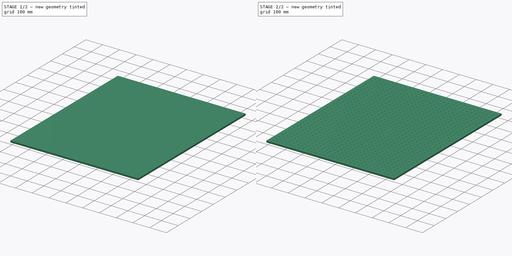
[diagram: build sequence overview — one tinted view per stage of 2, left to right]
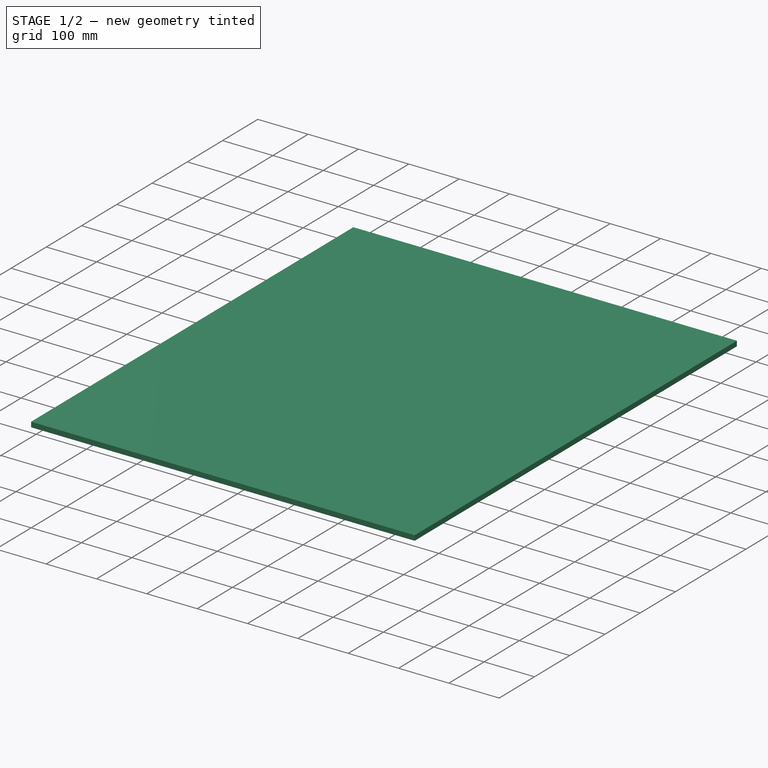
[diagram: stage 1 of 2 — iso view after this stage's code; geometry added in this stage tinted green]
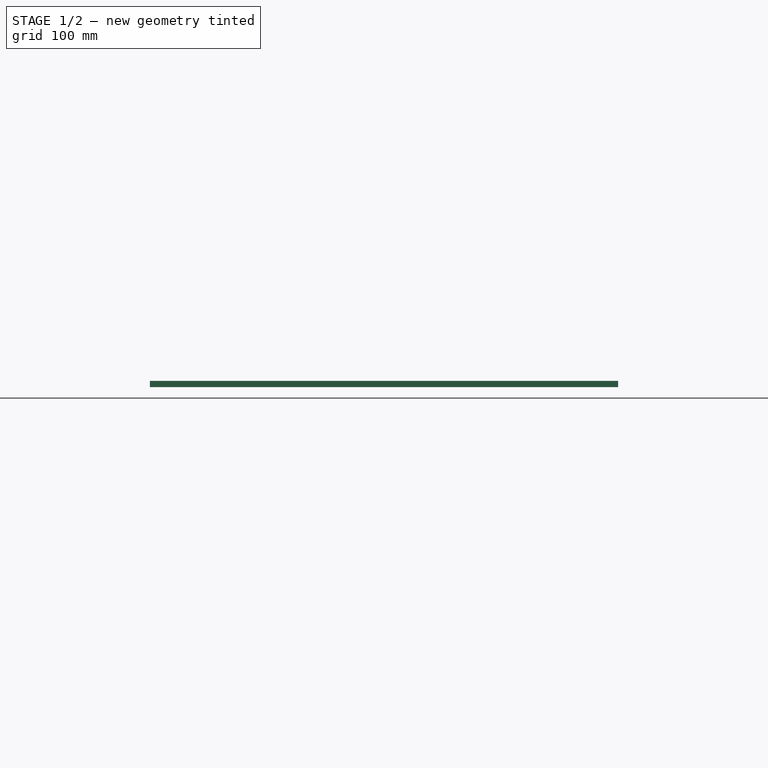
[diagram: stage 1 of 2 — front view after this stage's code; geometry added in this stage tinted green]
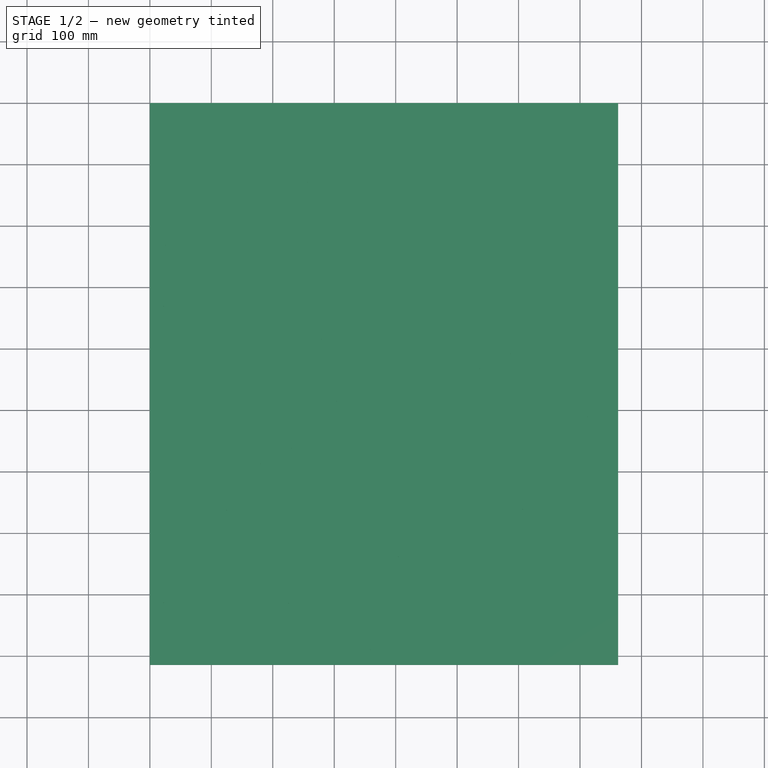
[diagram: stage 1 of 2 — top view after this stage's code; geometry added in this stage tinted green]
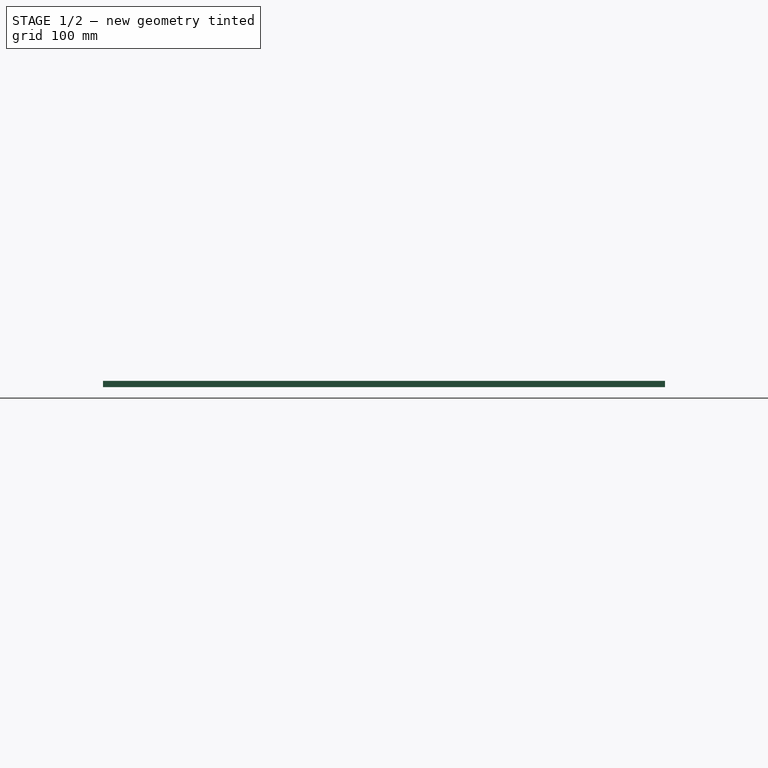
[diagram: stage 1 of 2 — right view after this stage's code; geometry added in this stage tinted green]
FCSTD DOCUMENT  (FreeCAD 0.19R23756 (Git))
Label: Breadboard-30by36
License: All rights reserved
LicenseURL: http://en.wikipedia.org/wiki/All_rights_reserved
objects: Sketcher::SketchObject×2, Part::Extrusion×2, Part::FeaturePython×1, Part::Cut×1
note: 5 computed .brp shape members not serialized (recipe doc carries the construction recipe); baked Part::Feature solids carry a one-line shape summary decoded from their .brp

FEATURE [Sketcher::SketchObject] Sketch
  FullyConstrained = true
  sketch-geometry (4):
    g0: LineSegment StartX=0 StartY=0 StartZ=0 EndX=762 EndY=0 EndZ=0
    g1: LineSegment StartX=762 StartY=0 StartZ=0 EndX=762 EndY=-914.4 EndZ=0
    g2: LineSegment StartX=762 StartY=-914.4 StartZ=0 EndX=0 EndY=-914.4 EndZ=0
    g3: LineSegment StartX=0 StartY=-914.4 StartZ=0 EndX=0 EndY=0 EndZ=0
  constraints (11):
    c: Coincident(g0,g1)
    c: Coincident(g1,g2)
    c: Coincident(g2,g3)
    c: Coincident(g3,g0)
    c: Horizontal(g0)
    c: Horizontal(g2)
    c: Vertical(g1)
    c: Vertical(g3)
    c: Distance(g3) = 914.4
    c: Distance(g0) = 762
    c: Coincident(g0,g-1)
FEATURE [Sketcher::SketchObject] Sketch001
  FullyConstrained = true
  sketch-geometry (1):
    g0: Circle CenterX=25.4 CenterY=-25.4 CenterZ=0 NormalX=0 NormalY=0 NormalZ=1 AngleXU=0 Radius=3.175
  constraints (3):
    c: Diameter(g0) = 6.35
    c: Distance(g0,g-2) = 25.4
    c: Distance(g0,g-1) = 25.4
FEATURE [Part::FeaturePython] Array  # Draft array (typed FeaturePython)
  Angle = 360
  ArrayType = 0
  Axis = (0,0,1)
  Base = -> Sketch001
  Center = (0,0,0)
  Count = 1015
  ExpandArray = false
  Fuse = false
  IntervalAxis = (0,0,0)
  IntervalX = (25.4,0,0)
  IntervalY = (0,-25.4,0)
  IntervalZ = (0,0,99.9998)
  NumberCircles = 3
  NumberPolar = 5
  NumberX = 29
  NumberY = 35
  NumberZ = 1
  PlacementList = 1015 placements: [(0,0,0),(0,-25.4,0),(0,-50.8,0),(0,-76.2,0),(0,-101.6,0),(0,-127,0),(0,-152.4,0),(0,-177.8,0),(0,-203.2,0),(0,-228.6,0),(0,-254,0),(0,-279.4,0),(0,-304.8,0),(0,-330.2,0),(0,-355.6,0),(0,-381,0),(0,-406.4,0),(0,-431.8,0),(0,-457.2,0),(0,-482.6,0),(0,-508,0),(0,-533.4,0),(0,-558.8,0),(0,-584.2,0),(0,-609.6,0),(0,-635,0),(0,-660.4,0),(0,-685.8,0),(0,-711.2,0),(0,-736.6,0),(0,-762,0),(0,-787.4,0),+983 more]
  RadialDistance = 50
  Symmetry = 1
  TangentialDistance = 25
FEATURE [Part::Extrusion] Extrude
  Base = -> Sketch
  Dir = (0,0,1)
  DirMode = 2
  FaceMakerClass = Part::FaceMakerBullseye
  LengthFwd = 10
  LengthRev = 0
  Solid = true
  Symmetric = false
FEATURE [Part::Extrusion] Extrude001
  Base = -> Array
  Dir = (0,0,1)
  DirMode = 2
  FaceMakerClass = Part::FaceMakerBullseye
  LengthFwd = 10
  LengthRev = 0
  Solid = true
  Symmetric = false
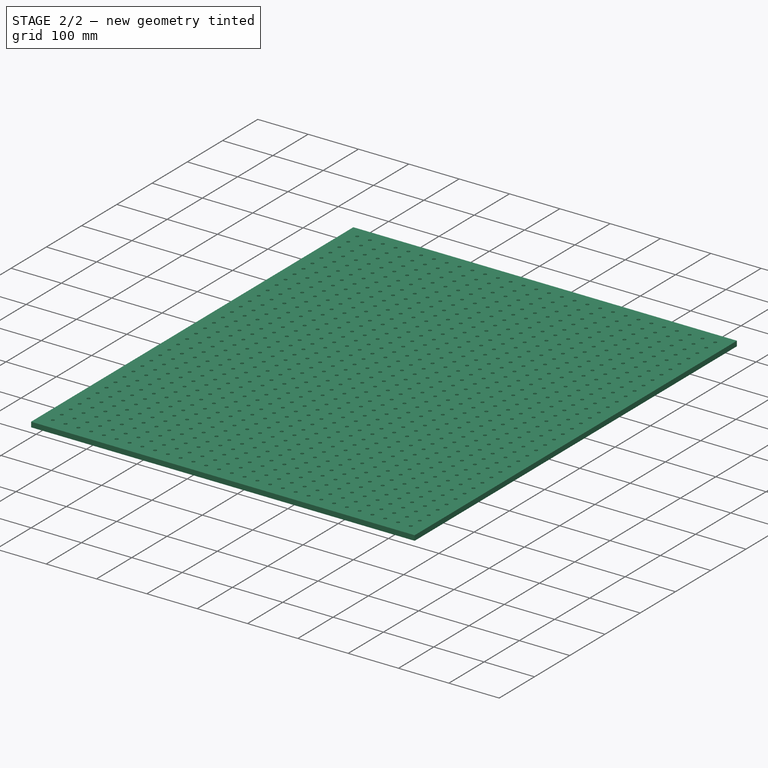
[diagram: stage 2 of 2 — iso view after this stage's code; geometry added in this stage tinted green]
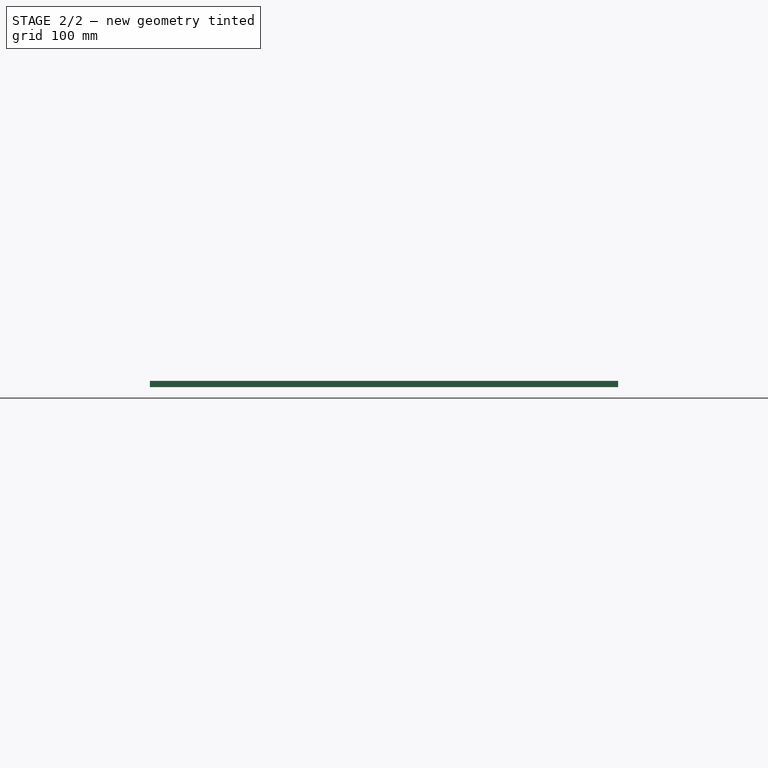
[diagram: stage 2 of 2 — front view after this stage's code; geometry added in this stage tinted green]
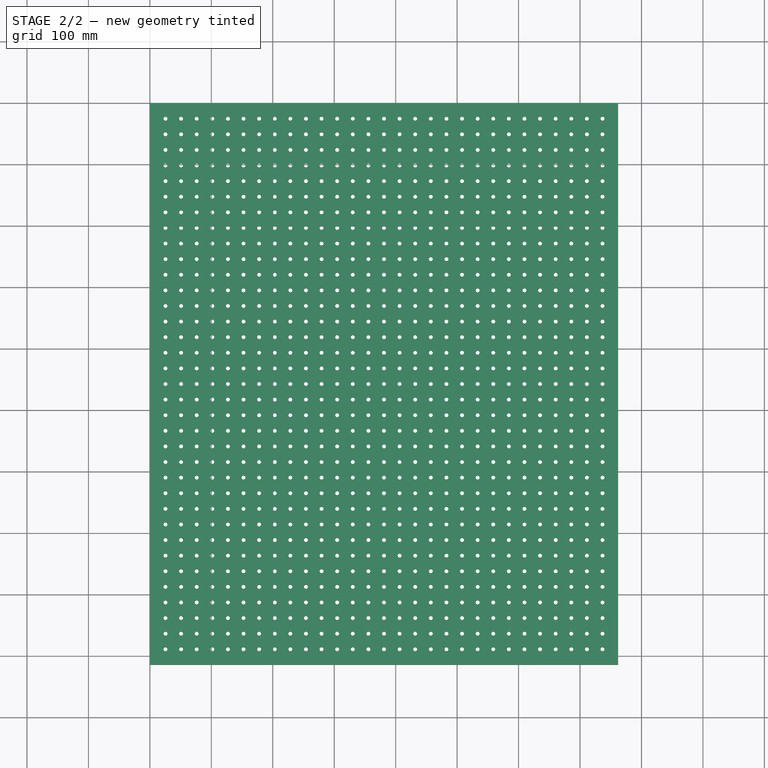
[diagram: stage 2 of 2 — top view after this stage's code; geometry added in this stage tinted green]
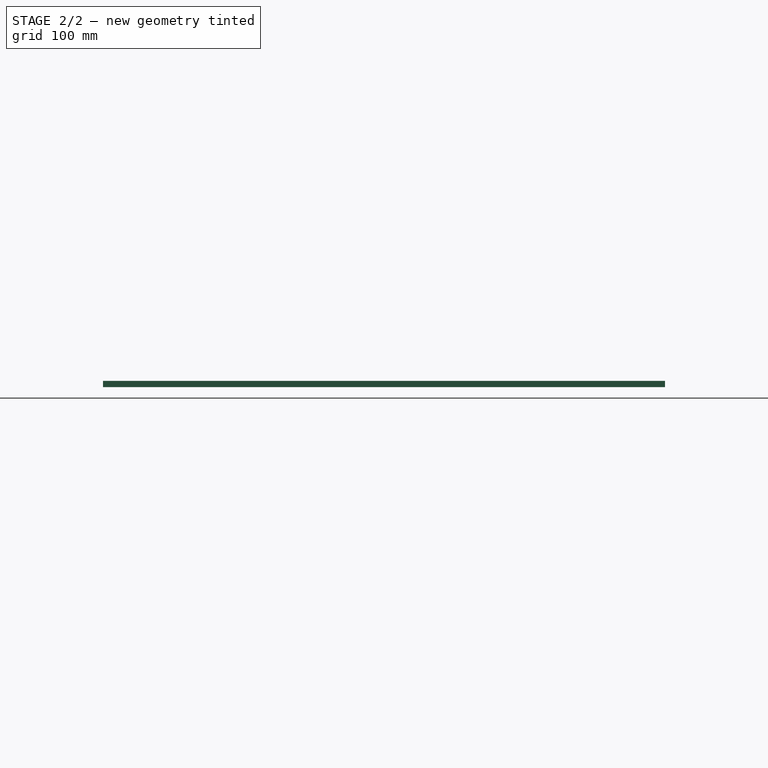
[diagram: stage 2 of 2 — right view after this stage's code; geometry added in this stage tinted green]
FEATURE [Part::Cut] Cut
  Base = -> Extrude
  Tool = -> Extrude001
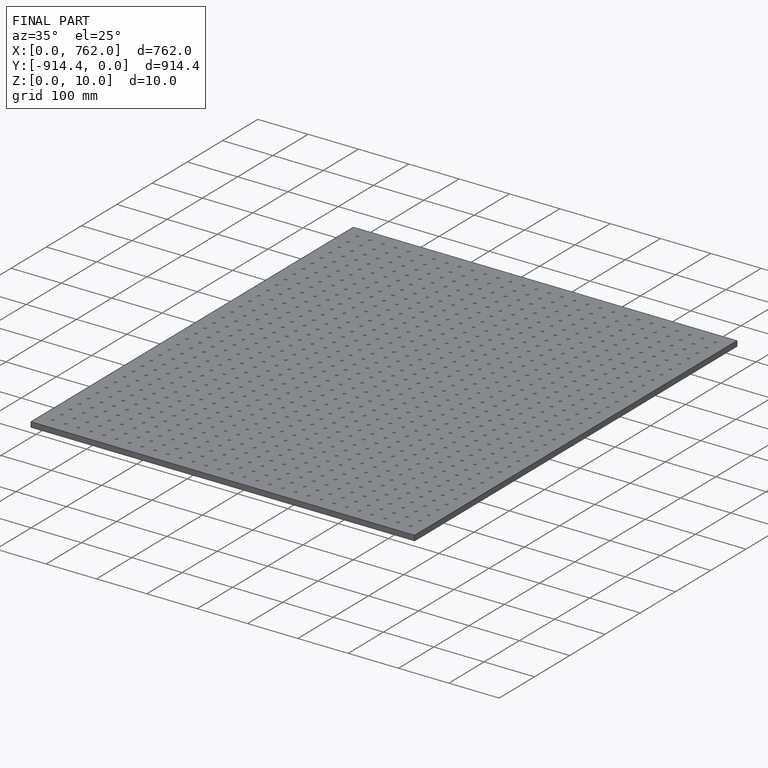
[diagram: finished part — iso view with bounding-box wireframe]
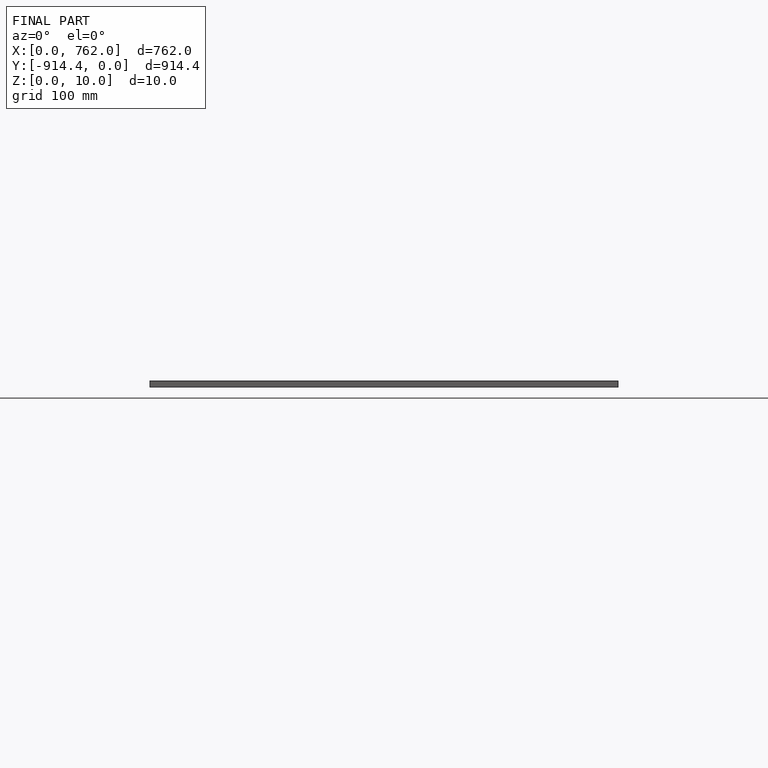
[diagram: finished part — front view with bounding-box wireframe]
